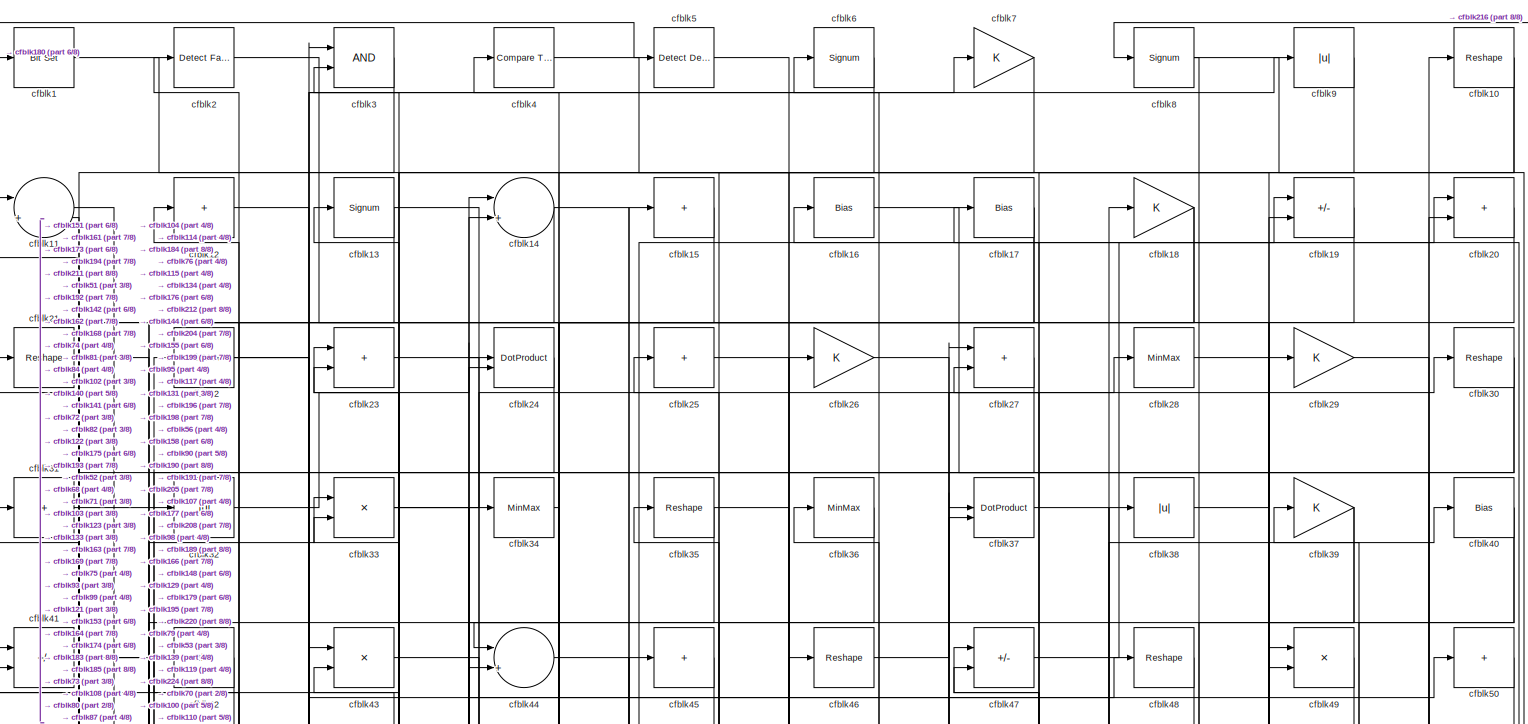
[diagram: root canvas - part 1/8, full width, top band]
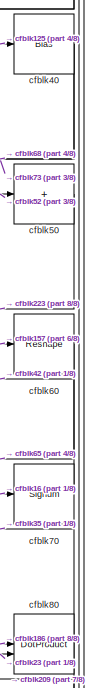
[diagram: root canvas - part 2/8, top right region]
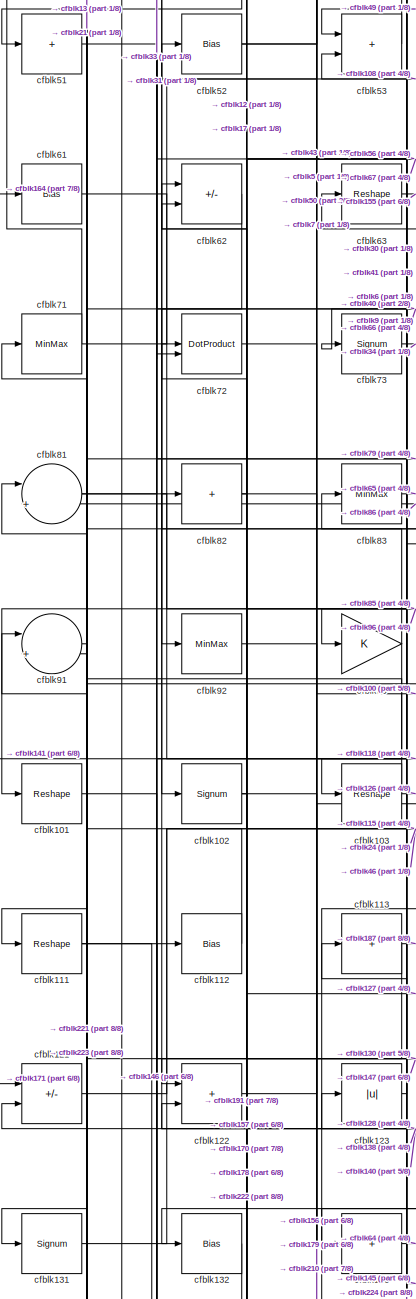
[diagram: root canvas - part 3/8, middle left region]
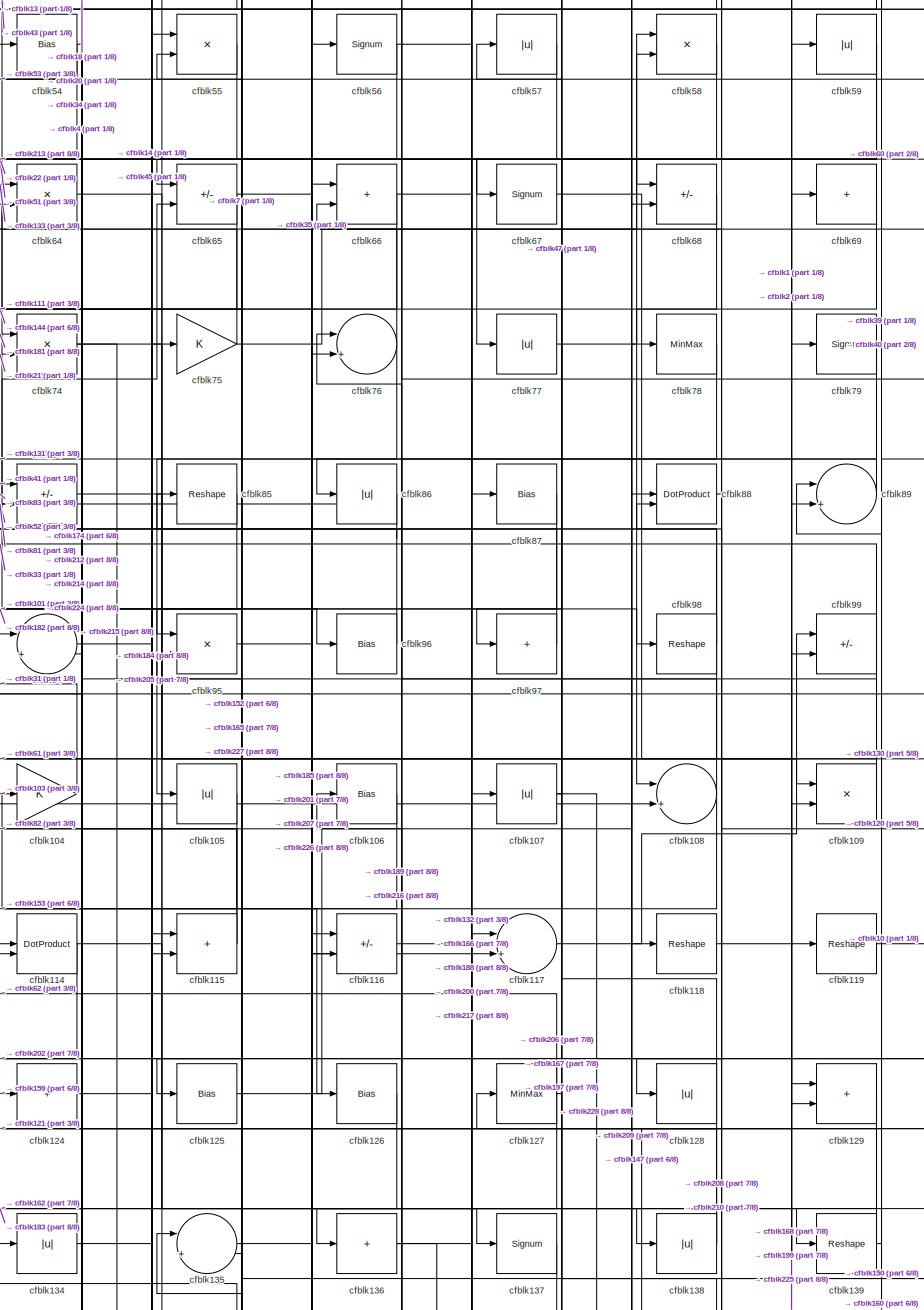
[diagram: root canvas - part 4/8, central region]
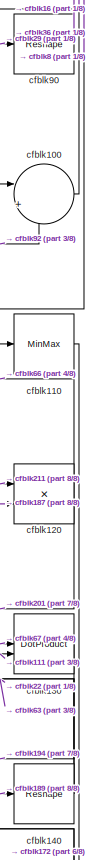
[diagram: root canvas - part 5/8, middle right region]
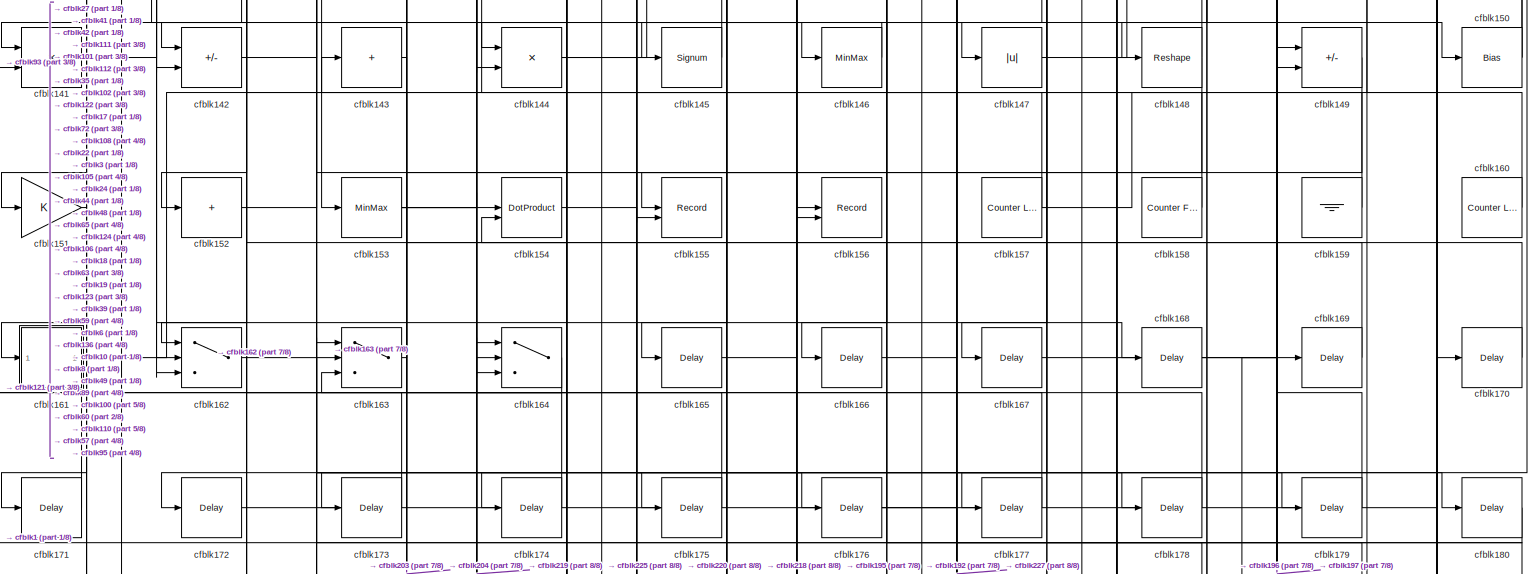
[diagram: root canvas - part 6/8, full width, bottom band]
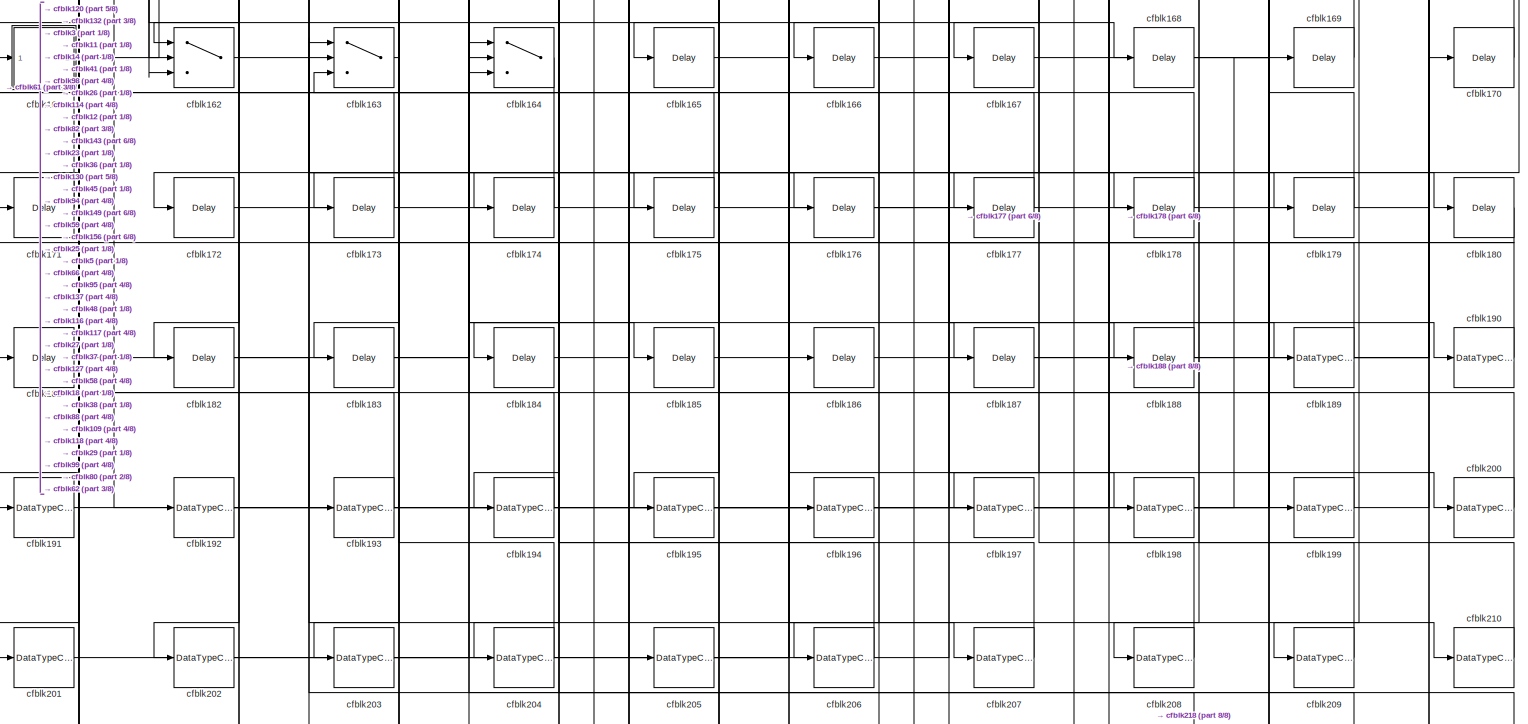
[diagram: root canvas - part 7/8, full width, bottom band]
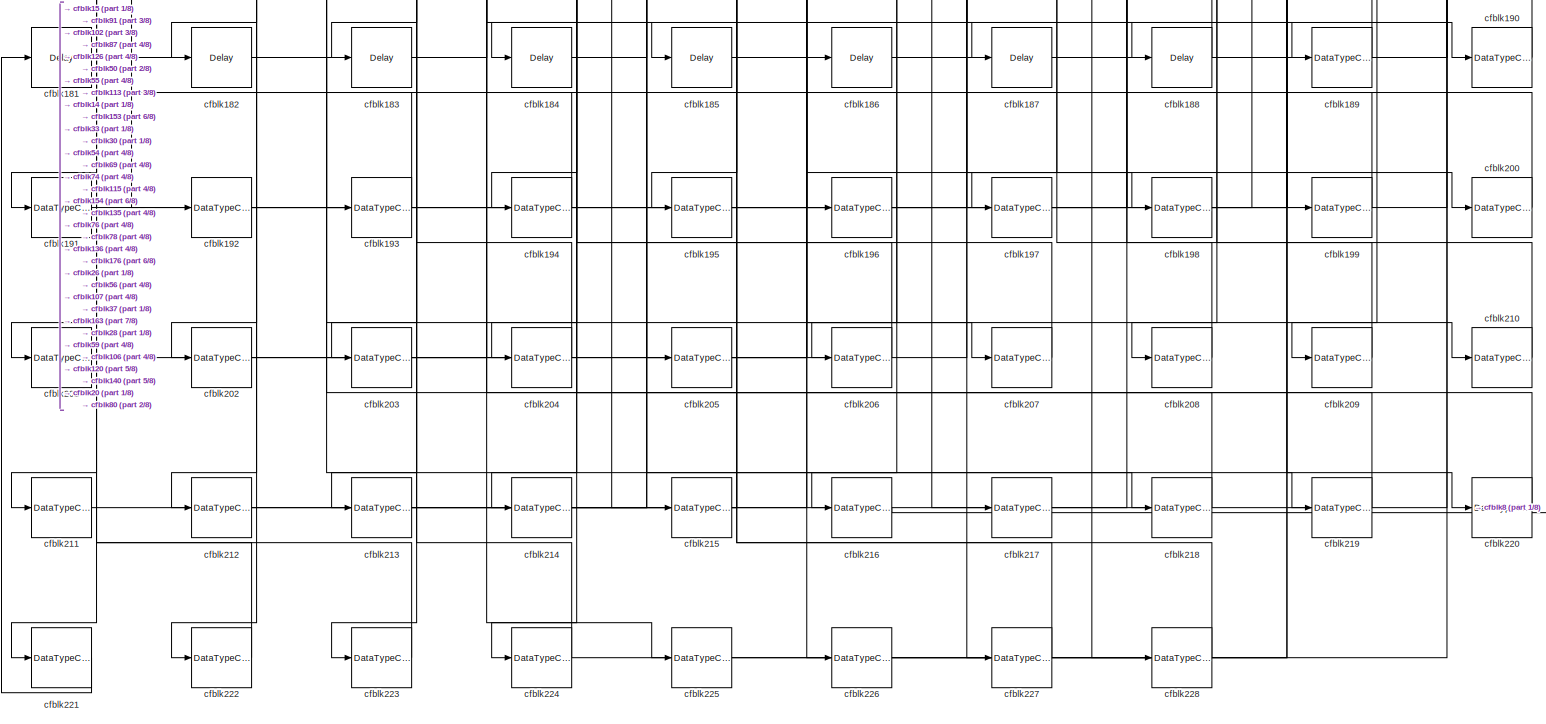
[diagram: root canvas - part 8/8, full width, bottom band]
MODEL slx_4e3c6273f8c1
KIND model
CONFIG AbsTol = auto
CONFIG EnableMultiTasking = off
CONFIG FixedStep = auto
CONFIG MaxStep = auto
CONFIG MinStep = auto
CONFIG RelTol = 1e-3
CONFIG SampleTimeConstraint = Unconstrained
CONFIG SolverName = VariableStepAuto
CONFIG StartTime = 0.0
CONFIG StopTime = 10.0
BLOCK [Reference] cfblk1  REF=simulink/Logic and Bit
Operations/Bit Set
  LibrarySourceBlock = hdlsllib/Logic and Bit\nOperations/Bit Set
  SourceBlock = simulink/Logic and Bit\nOperations/Bit Set
  SourceType = Bit Set
BLOCK [Reshape] cfblk10
BLOCK [Sum] cfblk100
  Inputs = |++
BLOCK [Reshape] cfblk101
BLOCK [Signum] cfblk102
BLOCK [Reshape] cfblk103
BLOCK [Gain] cfblk104
BLOCK [Abs] cfblk105
  SaturateOnIntegerOverflow = off
BLOCK [Bias] cfblk106
  Bias = 0.0
  SaturateOnIntegerOverflow = off
BLOCK [Abs] cfblk107
  SaturateOnIntegerOverflow = off
BLOCK [Sum] cfblk108
  Inputs = |++
BLOCK [Product] cfblk109
  Inputs = */
  RndMeth = Zero
  SaturateOnIntegerOverflow = on
BLOCK [Sum] cfblk11
  Inputs = |++
BLOCK [MinMax] cfblk110
BLOCK [Reshape] cfblk111
BLOCK [Bias] cfblk112
  Bias = 0.0
  SaturateOnIntegerOverflow = off
BLOCK [Sum] cfblk113
  IconShape = rectangular
  Inputs = +
BLOCK [DotProduct] cfblk114
  OutDataTypeStr = Inherit: Inherit via internal rule
BLOCK [Sum] cfblk115
  IconShape = rectangular
BLOCK [Sum] cfblk116
  IconShape = rectangular
  Inputs = +-
BLOCK [Sum] cfblk117
  Inputs = |++
BLOCK [Reshape] cfblk118
BLOCK [Reshape] cfblk119
BLOCK [Sum] cfblk12
  IconShape = rectangular
  Inputs = +
BLOCK [Product] cfblk120
  Inputs = */
  RndMeth = Zero
  SaturateOnIntegerOverflow = on
BLOCK [Sum] cfblk121
  IconShape = rectangular
  Inputs = +-
BLOCK [Sum] cfblk122
  IconShape = rectangular
BLOCK [Abs] cfblk123
  SaturateOnIntegerOverflow = off
BLOCK [Sum] cfblk124
  IconShape = rectangular
  Inputs = +
BLOCK [Bias] cfblk125
  Bias = 0.0
  SaturateOnIntegerOverflow = off
BLOCK [Bias] cfblk126
  Bias = 0.0
  SaturateOnIntegerOverflow = off
BLOCK [MinMax] cfblk127
BLOCK [Abs] cfblk128
  SaturateOnIntegerOverflow = off
BLOCK [Sum] cfblk129
  IconShape = rectangular
BLOCK [Signum] cfblk13
BLOCK [DotProduct] cfblk130
  OutDataTypeStr = Inherit: Inherit via internal rule
BLOCK [Signum] cfblk131
BLOCK [Bias] cfblk132
  Bias = 0.0
  SaturateOnIntegerOverflow = off
BLOCK [Sum] cfblk133
  IconShape = rectangular
  Inputs = +
BLOCK [Abs] cfblk134
  SaturateOnIntegerOverflow = off
BLOCK [Sum] cfblk135
  Inputs = |++
BLOCK [Sum] cfblk136
  IconShape = rectangular
  Inputs = +
BLOCK [Signum] cfblk137
BLOCK [Abs] cfblk138
  SaturateOnIntegerOverflow = off
BLOCK [Reshape] cfblk139
BLOCK [Sum] cfblk14
  Inputs = |++
BLOCK [Reshape] cfblk140
BLOCK [Product] cfblk141
  Inputs = */
  RndMeth = Zero
  SaturateOnIntegerOverflow = on
BLOCK [Sum] cfblk142
  IconShape = rectangular
  Inputs = +-
BLOCK [Sum] cfblk143
  IconShape = rectangular
  Inputs = +
BLOCK [Product] cfblk144
  Inputs = */
  RndMeth = Zero
  SaturateOnIntegerOverflow = on
BLOCK [Signum] cfblk145
BLOCK [MinMax] cfblk146
BLOCK [Abs] cfblk147
  SaturateOnIntegerOverflow = off
BLOCK [Reshape] cfblk148
BLOCK [Sum] cfblk149
  IconShape = rectangular
  Inputs = +-
BLOCK [Sum] cfblk15
  IconShape = rectangular
  Inputs = +
BLOCK [Bias] cfblk150
  Bias = 0.0
  SaturateOnIntegerOverflow = off
BLOCK [Gain] cfblk151
BLOCK [Sum] cfblk152
  IconShape = rectangular
  Inputs = +
BLOCK [MinMax] cfblk153
BLOCK [DotProduct] cfblk154
  OutDataTypeStr = Inherit: Inherit via internal rule
BLOCK [Record] cfblk155
  CompatibilityTag = XY
  FileSettingsInternal = {"entries":[{"content":{"excelSettings":{"content":{},"type":"Streamout.ExcelSettings"}},"type":"Streamout.FileSettingStorage","uuid":""}],"packageUris":["http:\/\/schema.mathworks.com\/mf0\/streamout_blocks\/R2020a"],"version":"1.0"}
  Layout = [1 1]
  SignalsInternal = {"entries":[{"content":{"signals":[{"content":{"blockPath":[],"dimensions":[1],"domain":"","lineColor":"#a2142f","plots":[1],"port":1,"signalID":3329,"signalName":"XY Graph:1"},"type":"RecordBlkView.Signal","uuid":""},{"content":{"blockPath":[],"dimensions":[1],"domain":"","lineColor":"#139fff","plots":[1],"port":2,"signalID":3332,"signalName":"XY Graph:2"},"type":"RecordBlkView.Signal","uuid":""}...<+146ch>
  VisualizationBindings = {"xyplotplugin":{"info":[{"series":[{"bindingParametersList":[{"parameter":"X-Axis","signalID":3329,"signalName":"XY Graph:1"},{"parameter":"Y-Axis","signalID":3332,"signalName":"XY Graph:2"}],"seriesID":6063}],"subplotID":1}]}}
  st = -1
BLOCK [Record] cfblk156
  CompatibilityTag = XY
  FileSettingsInternal = {"entries":[{"content":{"excelSettings":{"content":{},"type":"Streamout.ExcelSettings"}},"type":"Streamout.FileSettingStorage","uuid":""}],"packageUris":["http:\/\/schema.mathworks.com\/mf0\/streamout_blocks\/R2020a"],"version":"1.0"}
  Layout = [1 1]
  SignalsInternal = {"entries":[{"content":{"signals":[{"content":{"blockPath":[],"dimensions":[1],"domain":"","lineColor":"#a2142f","plots":[1],"port":1,"signalID":3337,"signalName":"XY Graph:1"},"type":"RecordBlkView.Signal","uuid":""},{"content":{"blockPath":[],"dimensions":[1],"domain":"","lineColor":"#139fff","plots":[1],"port":2,"signalID":3340,"signalName":"XY Graph:2"},"type":"RecordBlkView.Signal","uuid":""}...<+146ch>
  VisualizationBindings = {"xyplotplugin":{"info":[{"series":[{"bindingParametersList":[{"parameter":"X-Axis","signalID":3337,"signalName":"XY Graph:1"},{"parameter":"Y-Axis","signalID":3340,"signalName":"XY Graph:2"}],"seriesID":57072}],"subplotID":1}]}}
  st = -1
BLOCK [Reference] cfblk157  REF=hdlsllib/Sources/Counter
Limited
  SourceBlock = hdlsllib/Sources/Counter\nLimited
  SourceType = Counter Limited
BLOCK [Reference] cfblk158  REF=hdlsllib/Sources/Counter
Free-Running
  SourceBlock = hdlsllib/Sources/Counter\nFree-Running
  SourceType = Counter Free-Running
BLOCK [Ground] cfblk159
BLOCK [Bias] cfblk16
  Bias = 0.0
  SaturateOnIntegerOverflow = off
BLOCK [Reference] cfblk160  REF=hdlsllib/Sources/Counter
Limited
  SourceBlock = hdlsllib/Sources/Counter\nLimited
  SourceType = Counter Limited
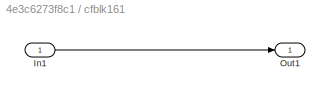
BLOCK [SubSystem] cfblk161
  LibrarySourceBlock = hdlsllib/Ports &\nSubsystems/Subsystem
BLOCK [Inport] cfblk161/In1
BLOCK [Outport] cfblk161/Out1
BLOCK [Switch] cfblk162
  InputSameDT = off
  SaturateOnIntegerOverflow = off
BLOCK [Switch] cfblk163
  InputSameDT = off
  SaturateOnIntegerOverflow = off
BLOCK [Switch] cfblk164
  InputSameDT = off
  SaturateOnIntegerOverflow = off
BLOCK [Delay] cfblk165
  InputPortMap = u0
  SampleTime = 1
BLOCK [Delay] cfblk166
  InputPortMap = u0
  SampleTime = 1
BLOCK [Delay] cfblk167
  InputPortMap = u0
  SampleTime = 1
BLOCK [Delay] cfblk168
  InputPortMap = u0
  SampleTime = 1
BLOCK [Delay] cfblk169
  InputPortMap = u0
  SampleTime = 1
BLOCK [Bias] cfblk17
  Bias = 0.0
  SaturateOnIntegerOverflow = off
BLOCK [Delay] cfblk170
  InputPortMap = u0
  SampleTime = 1
BLOCK [Delay] cfblk171
  InputPortMap = u0
  SampleTime = 1
BLOCK [Delay] cfblk172
  InputPortMap = u0
  SampleTime = 1
BLOCK [Delay] cfblk173
  InputPortMap = u0
  SampleTime = 1
BLOCK [Delay] cfblk174
  InputPortMap = u0
  SampleTime = 1
BLOCK [Delay] cfblk175
  InputPortMap = u0
  SampleTime = 1
BLOCK [Delay] cfblk176
  InputPortMap = u0
  SampleTime = 1
BLOCK [Delay] cfblk177
  InputPortMap = u0
  SampleTime = 1
BLOCK [Delay] cfblk178
  InputPortMap = u0
  SampleTime = 1
BLOCK [Delay] cfblk179
  InputPortMap = u0
  SampleTime = 1
BLOCK [Gain] cfblk18
BLOCK [Delay] cfblk180
  InputPortMap = u0
  SampleTime = 1
BLOCK [Delay] cfblk181
  InputPortMap = u0
  SampleTime = 1
BLOCK [Delay] cfblk182
  InputPortMap = u0
  SampleTime = 1
BLOCK [Delay] cfblk183
  InputPortMap = u0
  SampleTime = 1
BLOCK [Delay] cfblk184
  InputPortMap = u0
  SampleTime = 1
BLOCK [Delay] cfblk185
  InputPortMap = u0
  SampleTime = 1
BLOCK [Delay] cfblk186
  InputPortMap = u0
  SampleTime = 1
BLOCK [Delay] cfblk187
  InputPortMap = u0
  SampleTime = 1
BLOCK [Delay] cfblk188
  InputPortMap = u0
  SampleTime = 1
BLOCK [DataTypeConversion] cfblk189
  RndMeth = Floor
  SaturateOnIntegerOverflow = off
BLOCK [Sum] cfblk19
  IconShape = rectangular
  Inputs = +-
BLOCK [DataTypeConversion] cfblk190
  OutDataTypeStr = uint8
  RndMeth = Floor
  SaturateOnIntegerOverflow = off
BLOCK [DataTypeConversion] cfblk191
  OutDataTypeStr = uint8
  RndMeth = Floor
  SaturateOnIntegerOverflow = off
BLOCK [DataTypeConversion] cfblk192
  RndMeth = Floor
  SaturateOnIntegerOverflow = off
BLOCK [DataTypeConversion] cfblk193
  OutDataTypeStr = uint8
  RndMeth = Floor
  SaturateOnIntegerOverflow = off
BLOCK [DataTypeConversion] cfblk194
  OutDataTypeStr = uint8
  RndMeth = Floor
  SaturateOnIntegerOverflow = off
BLOCK [DataTypeConversion] cfblk195
  OutDataTypeStr = uint8
  RndMeth = Floor
  SaturateOnIntegerOverflow = off
BLOCK [DataTypeConversion] cfblk196
  OutDataTypeStr = uint8
  RndMeth = Floor
  SaturateOnIntegerOverflow = off
BLOCK [DataTypeConversion] cfblk197
  OutDataTypeStr = uint8
  RndMeth = Floor
  SaturateOnIntegerOverflow = off
BLOCK [DataTypeConversion] cfblk198
  RndMeth = Floor
  SaturateOnIntegerOverflow = off
BLOCK [DataTypeConversion] cfblk199
  OutDataTypeStr = uint8
  RndMeth = Floor
  SaturateOnIntegerOverflow = off
BLOCK [Reference] cfblk2  REF=hdlsllib/Logic and Bit
Operations/Detect Fall
Nonpositive
  SourceBlock = hdlsllib/Logic and Bit\nOperations/Detect Fall\nNonpositive
  SourceType = Detect Fall Nonpositive
BLOCK [Sum] cfblk20
  IconShape = rectangular
BLOCK [DataTypeConversion] cfblk200
  OutDataTypeStr = uint8
  RndMeth = Floor
  SaturateOnIntegerOverflow = off
BLOCK [DataTypeConversion] cfblk201
  OutDataTypeStr = uint8
  RndMeth = Floor
  SaturateOnIntegerOverflow = off
BLOCK [DataTypeConversion] cfblk202
  OutDataTypeStr = uint8
  RndMeth = Floor
  SaturateOnIntegerOverflow = off
BLOCK [DataTypeConversion] cfblk203
  OutDataTypeStr = uint8
  RndMeth = Floor
  SaturateOnIntegerOverflow = off
BLOCK [DataTypeConversion] cfblk204
  OutDataTypeStr = uint8
  RndMeth = Floor
  SaturateOnIntegerOverflow = off
BLOCK [DataTypeConversion] cfblk205
  OutDataTypeStr = uint8
  RndMeth = Floor
  SaturateOnIntegerOverflow = off
BLOCK [DataTypeConversion] cfblk206
  OutDataTypeStr = uint8
  RndMeth = Floor
  SaturateOnIntegerOverflow = off
BLOCK [DataTypeConversion] cfblk207
  OutDataTypeStr = uint8
  RndMeth = Floor
  SaturateOnIntegerOverflow = off
BLOCK [DataTypeConversion] cfblk208
  OutDataTypeStr = uint8
  RndMeth = Floor
  SaturateOnIntegerOverflow = off
BLOCK [DataTypeConversion] cfblk209
  OutDataTypeStr = uint8
  RndMeth = Floor
  SaturateOnIntegerOverflow = off
BLOCK [Reshape] cfblk21
BLOCK [DataTypeConversion] cfblk210
  OutDataTypeStr = uint8
  RndMeth = Floor
  SaturateOnIntegerOverflow = off
BLOCK [DataTypeConversion] cfblk211
  OutDataTypeStr = uint8
  RndMeth = Floor
  SaturateOnIntegerOverflow = off
BLOCK [DataTypeConversion] cfblk212
  OutDataTypeStr = uint8
  RndMeth = Floor
  SaturateOnIntegerOverflow = off
BLOCK [DataTypeConversion] cfblk213
  OutDataTypeStr = uint8
  RndMeth = Floor
  SaturateOnIntegerOverflow = off
BLOCK [DataTypeConversion] cfblk214
  OutDataTypeStr = uint8
  RndMeth = Floor
  SaturateOnIntegerOverflow = off
BLOCK [DataTypeConversion] cfblk215
  OutDataTypeStr = uint8
  RndMeth = Floor
  SaturateOnIntegerOverflow = off
BLOCK [DataTypeConversion] cfblk216
  OutDataTypeStr = uint8
  RndMeth = Floor
  SaturateOnIntegerOverflow = off
BLOCK [DataTypeConversion] cfblk217
  OutDataTypeStr = uint8
  RndMeth = Floor
  SaturateOnIntegerOverflow = off
BLOCK [DataTypeConversion] cfblk218
  OutDataTypeStr = uint8
  RndMeth = Floor
  SaturateOnIntegerOverflow = off
BLOCK [DataTypeConversion] cfblk219
  OutDataTypeStr = uint8
  RndMeth = Floor
  SaturateOnIntegerOverflow = off
BLOCK [MinMax] cfblk22
BLOCK [DataTypeConversion] cfblk220
  OutDataTypeStr = uint8
  RndMeth = Floor
  SaturateOnIntegerOverflow = off
BLOCK [DataTypeConversion] cfblk221
  OutDataTypeStr = uint8
  RndMeth = Floor
  SaturateOnIntegerOverflow = off
BLOCK [DataTypeConversion] cfblk222
  OutDataTypeStr = uint8
  RndMeth = Floor
  SaturateOnIntegerOverflow = off
BLOCK [DataTypeConversion] cfblk223
  OutDataTypeStr = uint8
  RndMeth = Floor
  SaturateOnIntegerOverflow = off
BLOCK [DataTypeConversion] cfblk224
  RndMeth = Floor
  SaturateOnIntegerOverflow = off
BLOCK [DataTypeConversion] cfblk225
  OutDataTypeStr = uint8
  RndMeth = Floor
  SaturateOnIntegerOverflow = off
BLOCK [DataTypeConversion] cfblk226
  OutDataTypeStr = uint8
  RndMeth = Floor
  SaturateOnIntegerOverflow = off
BLOCK [DataTypeConversion] cfblk227
  OutDataTypeStr = uint8
  RndMeth = Floor
  SaturateOnIntegerOverflow = off
BLOCK [DataTypeConversion] cfblk228
  OutDataTypeStr = uint8
  RndMeth = Floor
  SaturateOnIntegerOverflow = off
BLOCK [Sum] cfblk23
  IconShape = rectangular
BLOCK [DotProduct] cfblk24
  OutDataTypeStr = Inherit: Inherit via internal rule
BLOCK [Sum] cfblk25
  IconShape = rectangular
  Inputs = +
BLOCK [Gain] cfblk26
BLOCK [Sum] cfblk27
  IconShape = rectangular
BLOCK [MinMax] cfblk28
BLOCK [Gain] cfblk29
BLOCK [Logic] cfblk3
  AllPortsSameDT = off
  OutDataTypeStr = boolean
BLOCK [Reshape] cfblk30
BLOCK [Sum] cfblk31
  IconShape = rectangular
  Inputs = +
BLOCK [Abs] cfblk32
  SaturateOnIntegerOverflow = off
BLOCK [Product] cfblk33
  Inputs = */
  RndMeth = Zero
  SaturateOnIntegerOverflow = on
BLOCK [MinMax] cfblk34
BLOCK [Reshape] cfblk35
BLOCK [MinMax] cfblk36
BLOCK [DotProduct] cfblk37
  OutDataTypeStr = Inherit: Inherit via internal rule
BLOCK [Abs] cfblk38
  SaturateOnIntegerOverflow = off
BLOCK [Gain] cfblk39
BLOCK [Reference] cfblk4  REF=hdlsllib/Logic and Bit
Operations/Compare
To Zero
  SourceBlock = hdlsllib/Logic and Bit\nOperations/Compare\nTo Zero
  SourceType = Compare To Zero
BLOCK [Bias] cfblk40
  Bias = 0.0
  SaturateOnIntegerOverflow = off
BLOCK [Sum] cfblk41
  IconShape = rectangular
  Inputs = +-
BLOCK [Bias] cfblk42
  Bias = 0.0
  SaturateOnIntegerOverflow = off
BLOCK [Product] cfblk43
  Inputs = */
  RndMeth = Zero
  SaturateOnIntegerOverflow = on
BLOCK [Sum] cfblk44
  Inputs = |++
BLOCK [Sum] cfblk45
  IconShape = rectangular
  Inputs = +
BLOCK [Reshape] cfblk46
BLOCK [Sum] cfblk47
  IconShape = rectangular
  Inputs = +-
BLOCK [Reshape] cfblk48
BLOCK [Product] cfblk49
  Inputs = */
  RndMeth = Zero
  SaturateOnIntegerOverflow = on
BLOCK [Reference] cfblk5  REF=simulink/Logic and Bit
Operations/Detect
Decrease
  LibrarySourceBlock = hdlsllib/Logic and Bit\nOperations/Detect\nDecrease
  SourceBlock = simulink/Logic and Bit\nOperations/Detect\nDecrease
  SourceType = Detect Decrease
BLOCK [Sum] cfblk50
  IconShape = rectangular
  Inputs = +
BLOCK [Sum] cfblk51
  IconShape = rectangular
  Inputs = +
BLOCK [Bias] cfblk52
  Bias = 0.0
  SaturateOnIntegerOverflow = off
BLOCK [Sum] cfblk53
  IconShape = rectangular
BLOCK [Bias] cfblk54
  Bias = 0.0
  SaturateOnIntegerOverflow = off
BLOCK [Product] cfblk55
  Inputs = */
  RndMeth = Zero
  SaturateOnIntegerOverflow = on
BLOCK [Signum] cfblk56
BLOCK [Abs] cfblk57
  SaturateOnIntegerOverflow = off
BLOCK [Product] cfblk58
  Inputs = */
  RndMeth = Zero
  SaturateOnIntegerOverflow = on
BLOCK [Abs] cfblk59
  SaturateOnIntegerOverflow = off
BLOCK [Signum] cfblk6
BLOCK [Reshape] cfblk60
BLOCK [Bias] cfblk61
  Bias = 0.0
  SaturateOnIntegerOverflow = off
BLOCK [Sum] cfblk62
  IconShape = rectangular
  Inputs = +-
BLOCK [Reshape] cfblk63
BLOCK [Product] cfblk64
  Inputs = */
  RndMeth = Zero
  SaturateOnIntegerOverflow = on
BLOCK [Sum] cfblk65
  IconShape = rectangular
  Inputs = +-
BLOCK [Sum] cfblk66
  IconShape = rectangular
BLOCK [Signum] cfblk67
BLOCK [Sum] cfblk68
  IconShape = rectangular
  Inputs = +-
BLOCK [Sum] cfblk69
  IconShape = rectangular
  Inputs = +
BLOCK [Gain] cfblk7
BLOCK [Signum] cfblk70
BLOCK [MinMax] cfblk71
BLOCK [DotProduct] cfblk72
  OutDataTypeStr = Inherit: Inherit via internal rule
BLOCK [Signum] cfblk73
BLOCK [Product] cfblk74
  Inputs = */
  RndMeth = Zero
  SaturateOnIntegerOverflow = on
BLOCK [Gain] cfblk75
BLOCK [Sum] cfblk76
  Inputs = |++
BLOCK [Abs] cfblk77
  SaturateOnIntegerOverflow = off
BLOCK [MinMax] cfblk78
BLOCK [Signum] cfblk79
BLOCK [Signum] cfblk8
BLOCK [DotProduct] cfblk80
  OutDataTypeStr = Inherit: Inherit via internal rule
BLOCK [Sum] cfblk81
  Inputs = |++
BLOCK [Sum] cfblk82
  IconShape = rectangular
  Inputs = +
BLOCK [MinMax] cfblk83
BLOCK [Sum] cfblk84
  IconShape = rectangular
  Inputs = +-
BLOCK [Reshape] cfblk85
BLOCK [Abs] cfblk86
  SaturateOnIntegerOverflow = off
BLOCK [Bias] cfblk87
  Bias = 0.0
  SaturateOnIntegerOverflow = off
BLOCK [DotProduct] cfblk88
  OutDataTypeStr = Inherit: Inherit via internal rule
BLOCK [Sum] cfblk89
  Inputs = |++
BLOCK [Abs] cfblk9
  SaturateOnIntegerOverflow = off
BLOCK [Reshape] cfblk90
BLOCK [Sum] cfblk91
  Inputs = |++
BLOCK [MinMax] cfblk92
BLOCK [Gain] cfblk93
BLOCK [Sum] cfblk94
  Inputs = |++
BLOCK [Product] cfblk95
  Inputs = */
  RndMeth = Zero
  SaturateOnIntegerOverflow = on
BLOCK [Bias] cfblk96
  Bias = 0.0
  SaturateOnIntegerOverflow = off
BLOCK [Sum] cfblk97
  IconShape = rectangular
  Inputs = +
BLOCK [Reshape] cfblk98
BLOCK [Sum] cfblk99
  IconShape = rectangular
  Inputs = +-
LINE cfblk100:1 -> cfblk16:1
LINE cfblk101:1 -> cfblk146:1
NET cfblk102:1 -> cfblk156:2, cfblk222:1
NET cfblk103:1 -> cfblk126:1, cfblk71:1
LINE cfblk104:1 -> cfblk31:1
LINE cfblk105:1 -> cfblk153:1
LINE cfblk106:1 -> cfblk174:1
NET cfblk107:1 -> cfblk228:1, cfblk47:2
NET cfblk108:1 -> cfblk125:1, cfblk53:2
LINE cfblk109:1 -> cfblk76:1
NET cfblk10:1 -> cfblk177:1, cfblk44:1
LINE cfblk110:1 -> cfblk172:1
NET cfblk111:1 -> cfblk130:2, cfblk147:1
LINE cfblk112:1 -> cfblk81:1
NET cfblk113:1 -> cfblk122:1, cfblk187:1
NET cfblk114:1 -> cfblk137:1, cfblk202:1
NET cfblk115:1 -> cfblk54:1, cfblk82:1
LINE cfblk116:1 -> cfblk200:1
LINE cfblk117:1 -> cfblk99:1
LINE cfblk118:1 -> cfblk199:1
LINE cfblk119:1 -> cfblk10:1
LINE cfblk11:1 -> cfblk192:1
NET cfblk120:1 -> cfblk201:1, cfblk66:2
LINE cfblk121:1 -> cfblk24:2
LINE cfblk122:1 -> cfblk9:1
LINE cfblk123:1 -> cfblk13:1
LINE cfblk124:1 -> cfblk75:1
LINE cfblk125:1 -> cfblk40:1
LINE cfblk126:1 -> cfblk183:1
NET cfblk127:1 -> cfblk162:1, cfblk167:1, cfblk62:1
NET cfblk128:1 -> cfblk121:2, cfblk85:1
LINE cfblk129:1 -> cfblk136:1
LINE cfblk12:1 -> cfblk193:1
LINE cfblk130:1 -> cfblk194:1
LINE cfblk131:1 -> cfblk46:1
LINE cfblk132:1 -> cfblk191:1
LINE cfblk133:1 -> cfblk64:1
LINE cfblk134:1 -> cfblk45:1
LINE cfblk135:1 -> cfblk226:1
NET cfblk136:1 -> cfblk150:1, cfblk217:1
LINE cfblk137:1 -> cfblk206:1
NET cfblk138:1 -> cfblk52:1, cfblk84:2
NET cfblk139:1 -> cfblk127:1, cfblk39:1
NET cfblk13:1 -> cfblk108:1, cfblk51:1
NET cfblk140:1 -> cfblk22:1, cfblk63:1
LINE cfblk141:1 -> cfblk112:1
LINE cfblk142:1 -> cfblk3:1
LINE cfblk143:1 -> cfblk203:1
NET cfblk144:1 -> cfblk180:1, cfblk19:1
LINE cfblk145:1 -> cfblk123:1
LINE cfblk146:1 -> cfblk145:1
LINE cfblk147:1 -> cfblk89:2
NET cfblk148:1 -> cfblk173:1, cfblk17:1
LINE cfblk149:1 -> cfblk195:1
NET cfblk14:1 -> cfblk115:1, cfblk162:2
NET cfblk150:1 -> cfblk57:1, cfblk95:2
LINE cfblk151:1 -> cfblk171:1
LINE cfblk152:1 -> cfblk108:2
NET cfblk153:1 -> cfblk225:1, cfblk44:2, cfblk48:1
LINE cfblk154:1 -> cfblk218:1
NET cfblk157:1 -> cfblk60:1, cfblk72:1
LINE cfblk158:1 -> cfblk6:1
LINE cfblk159:1 -> cfblk124:1
LINE cfblk15:1 -> cfblk211:1
LINE cfblk160:1 -> cfblk89:1
LINE cfblk161/In1:1 -> cfblk161/Out1:1
LINE cfblk161:1 -> cfblk26:1
LINE cfblk162:1 -> cfblk178:1
LINE cfblk163:1 -> cfblk23:1
LINE cfblk164:1 -> cfblk61:1
LINE cfblk165:1 -> cfblk66:1
LINE cfblk166:1 -> cfblk117:1
LINE cfblk167:1 -> cfblk99:2
LINE cfblk168:1 -> cfblk109:2
LINE cfblk169:1 -> cfblk23:2
LINE cfblk16:1 -> cfblk70:1
LINE cfblk170:1 -> cfblk62:2
LINE cfblk171:1 -> cfblk121:1
LINE cfblk172:1 -> cfblk100:1
LINE cfblk173:1 -> cfblk41:2
LINE cfblk174:1 -> cfblk24:1
LINE cfblk175:1 -> cfblk3:2
LINE cfblk176:1 -> cfblk227:1
LINE cfblk177:1 -> cfblk163:3
LINE cfblk178:1 -> cfblk122:2
LINE cfblk179:1 -> cfblk49:1
NET cfblk17:1 -> cfblk142:1, cfblk72:2
LINE cfblk180:1 -> cfblk1:1
LINE cfblk181:1 -> cfblk74:1
LINE cfblk182:1 -> cfblk219:1
LINE cfblk183:1 -> cfblk14:1
LINE cfblk184:1 -> cfblk115:2
LINE cfblk185:1 -> cfblk76:2
LINE cfblk186:1 -> cfblk80:1
LINE cfblk187:1 -> cfblk120:2
LINE cfblk188:1 -> cfblk163:1
NET cfblk189:1 -> cfblk106:1, cfblk140:1
NET cfblk18:1 -> cfblk104:1, cfblk144:1
LINE cfblk190:1 -> cfblk37:1
LINE cfblk191:1 -> cfblk37:2
NET cfblk192:1 -> cfblk156:1, cfblk18:1, cfblk38:1
LINE cfblk193:1 -> cfblk11:1
LINE cfblk194:1 -> cfblk11:2
LINE cfblk195:1 -> cfblk29:1
LINE cfblk196:1 -> cfblk149:1
LINE cfblk197:1 -> cfblk149:2
NET cfblk198:1 -> cfblk169:1, cfblk170:1
LINE cfblk199:1 -> cfblk25:1
LINE cfblk19:1 -> cfblk49:2
LINE cfblk1:1 -> cfblk79:1
LINE cfblk200:1 -> cfblk164:1
LINE cfblk201:1 -> cfblk116:1
LINE cfblk202:1 -> cfblk116:2
LINE cfblk203:1 -> cfblk164:2
LINE cfblk204:1 -> cfblk143:1
LINE cfblk205:1 -> cfblk27:1
LINE cfblk206:1 -> cfblk94:1
LINE cfblk207:1 -> cfblk94:2
LINE cfblk208:1 -> cfblk27:2
LINE cfblk209:1 -> cfblk88:1
LINE cfblk20:1 -> cfblk134:1
LINE cfblk210:1 -> cfblk88:2
LINE cfblk211:1 -> cfblk120:1
LINE cfblk212:1 -> cfblk15:1
LINE cfblk213:1 -> cfblk186:1
LINE cfblk214:1 -> cfblk55:1
LINE cfblk215:1 -> cfblk55:2
LINE cfblk216:1 -> cfblk8:1
LINE cfblk217:1 -> cfblk78:1
LINE cfblk218:1 -> cfblk163:2
LINE cfblk219:1 -> cfblk154:1
LINE cfblk21:1 -> cfblk74:2
LINE cfblk220:1 -> cfblk154:2
LINE cfblk221:1 -> cfblk181:1
LINE cfblk222:1 -> cfblk91:1
LINE cfblk223:1 -> cfblk91:2
NET cfblk224:1 -> cfblk113:1, cfblk20:2
LINE cfblk225:1 -> cfblk69:1
LINE cfblk226:1 -> cfblk59:1
LINE cfblk227:1 -> cfblk135:1
LINE cfblk228:1 -> cfblk135:2
NET cfblk22:1 -> cfblk175:1, cfblk68:2
LINE cfblk23:1 -> cfblk80:2
LINE cfblk24:1 -> cfblk32:1
LINE cfblk25:1 -> cfblk198:1
LINE cfblk26:1 -> cfblk190:1
LINE cfblk27:1 -> cfblk151:1
LINE cfblk28:1 -> cfblk220:1
LINE cfblk29:1 -> cfblk90:1
LINE cfblk2:1 -> cfblk119:1
NET cfblk30:1 -> cfblk103:1, cfblk184:1
LINE cfblk31:1 -> cfblk102:1
LINE cfblk32:1 -> cfblk14:2
NET cfblk33:1 -> cfblk185:1, cfblk30:1
LINE cfblk34:1 -> cfblk114:1
NET cfblk35:1 -> cfblk117:2, cfblk142:2
LINE cfblk36:1 -> cfblk164:3
LINE cfblk37:1 -> cfblk189:1
LINE cfblk38:1 -> cfblk19:2
NET cfblk39:1 -> cfblk129:2, cfblk155:1
LINE cfblk3:1 -> cfblk161:1
NET cfblk40:1 -> cfblk68:1, cfblk73:1
NET cfblk41:1 -> cfblk168:1, cfblk84:1
LINE cfblk42:1 -> cfblk141:1
LINE cfblk43:1 -> cfblk87:1
LINE cfblk44:1 -> cfblk176:1
LINE cfblk45:1 -> cfblk204:1
LINE cfblk46:1 -> cfblk28:1
LINE cfblk47:1 -> cfblk20:1
LINE cfblk48:1 -> cfblk166:1
LINE cfblk49:1 -> cfblk53:1
LINE cfblk4:1 -> cfblk56:1
LINE cfblk50:1 -> cfblk223:1
LINE cfblk51:1 -> cfblk67:1
NET cfblk52:1 -> cfblk50:1, cfblk7:1
LINE cfblk53:1 -> cfblk41:1
NET cfblk54:1 -> cfblk212:1, cfblk214:1
LINE cfblk55:1 -> cfblk213:1
NET cfblk56:1 -> cfblk132:1, cfblk188:1
LINE cfblk57:1 -> cfblk77:1
LINE cfblk58:1 -> cfblk197:1
NET cfblk59:1 -> cfblk114:2, cfblk152:1, cfblk165:1, cfblk97:1
LINE cfblk5:1 -> cfblk196:1
LINE cfblk60:1 -> cfblk65:1
LINE cfblk61:1 -> cfblk118:1
LINE cfblk62:1 -> cfblk92:1
LINE cfblk63:1 -> cfblk155:2
LINE cfblk64:1 -> cfblk109:1
NET cfblk65:1 -> cfblk138:1, cfblk144:2
NET cfblk66:1 -> cfblk107:1, cfblk111:1
LINE cfblk67:1 -> cfblk130:1
LINE cfblk68:1 -> cfblk98:1
LINE cfblk69:1 -> cfblk224:1
LINE cfblk6:1 -> cfblk133:1
LINE cfblk70:1 -> cfblk42:1
NET cfblk71:1 -> cfblk43:1, cfblk5:1
LINE cfblk72:1 -> cfblk179:1
LINE cfblk73:1 -> cfblk34:1
NET cfblk74:1 -> cfblk139:1, cfblk215:1
NET cfblk75:1 -> cfblk43:2, cfblk58:1
NET cfblk76:1 -> cfblk105:1, cfblk4:1
LINE cfblk77:1 -> cfblk58:2
LINE cfblk78:1 -> cfblk216:1
LINE cfblk79:1 -> cfblk131:1
LINE cfblk7:1 -> cfblk95:1
NET cfblk80:1 -> cfblk209:1, cfblk35:1
NET cfblk81:1 -> cfblk33:2, cfblk96:1
NET cfblk82:1 -> cfblk12:1, cfblk210:1
LINE cfblk83:1 -> cfblk65:2
LINE cfblk84:1 -> cfblk129:1
LINE cfblk85:1 -> cfblk101:1
LINE cfblk86:1 -> cfblk81:2
LINE cfblk87:1 -> cfblk182:1
LINE cfblk88:1 -> cfblk208:1
LINE cfblk89:1 -> cfblk86:1
NET cfblk8:1 -> cfblk110:1, cfblk148:1
LINE cfblk90:1 -> cfblk36:1
LINE cfblk91:1 -> cfblk221:1
LINE cfblk92:1 -> cfblk100:2
NET cfblk93:1 -> cfblk141:2, cfblk21:1
LINE cfblk94:1 -> cfblk205:1
LINE cfblk95:1 -> cfblk207:1
LINE cfblk96:1 -> cfblk83:1
LINE cfblk97:1 -> cfblk64:2
NET cfblk98:1 -> cfblk162:3, cfblk2:1, cfblk47:1
NET cfblk99:1 -> cfblk128:1, cfblk33:1
LINE cfblk9:1 -> cfblk93:1
note: NET lines group one-source signal fan-out (src -> all destinations, sorted); 1:1 wires keep LINE
